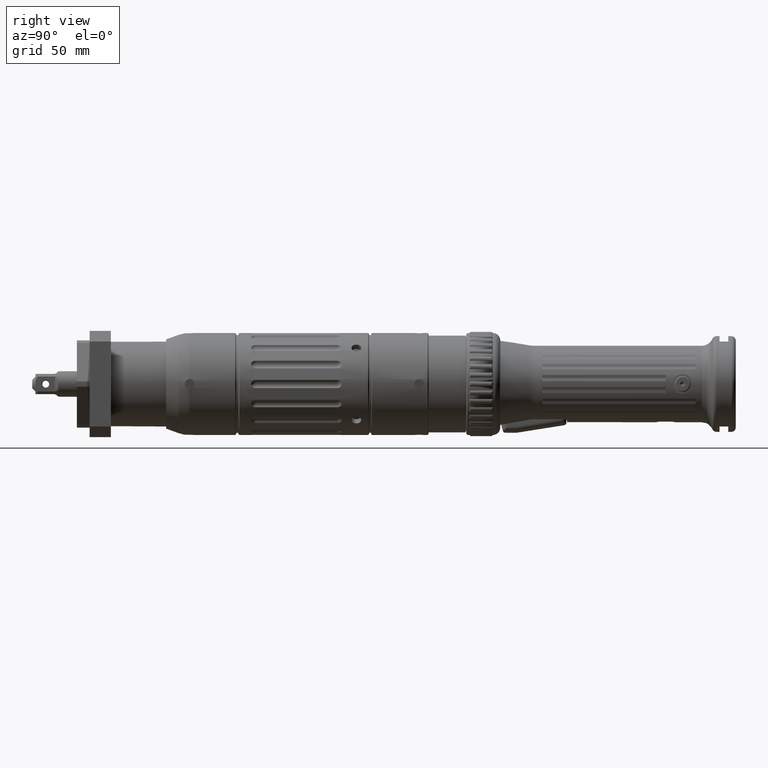
[diagram: clean part render]
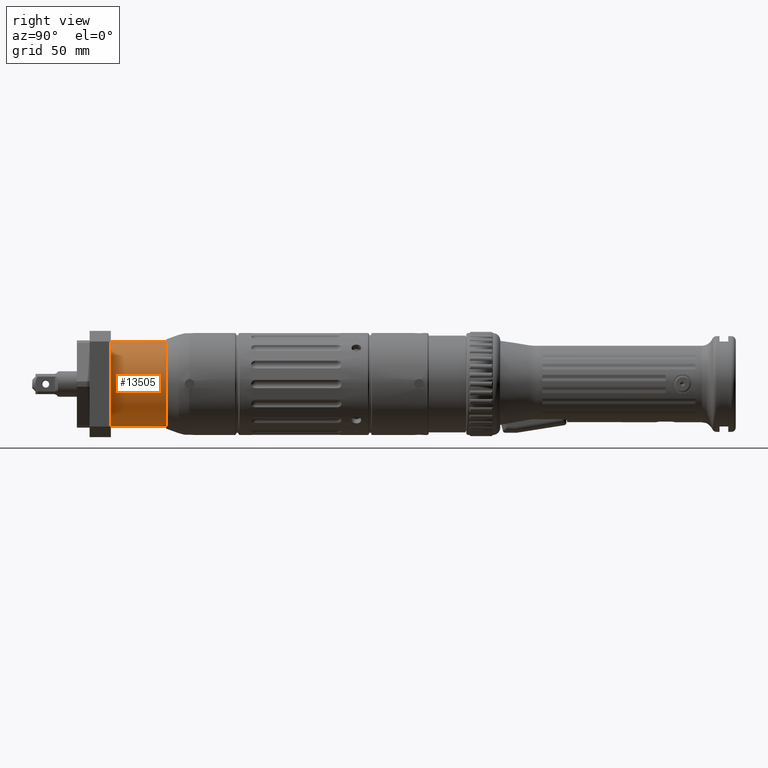
[diagram: same view with one face highlighted and labeled with its STEP entity id]
A machine part, right view. The second image highlights one B-rep face of the part: STEP entity #13505.
In plain terms, the highlighted cylindrical surface (bore or boss wall) has radius 20 mm, axis along (0, 1, -0).
Its self-contained STEP definition (entity closure, byte-faithful):
#224=FACE_BOUND('',#1887,.T.);
#1025=FACE_OUTER_BOUND('',#1886,.T.);
#1886=EDGE_LOOP('',(#8890));
#1887=EDGE_LOOP('',(#8891));
#2991=CIRCLE('',#14423,20.);
#2995=CIRCLE('',#14432,20.);
#5620=VERTEX_POINT('',#21199);
#5624=VERTEX_POINT('',#21212);
#6922=EDGE_CURVE('',#5620,#5620,#2991,.T.);
#6926=EDGE_CURVE('',#5624,#5624,#2995,.T.);
#8890=ORIENTED_EDGE('',*,*,#6926,.F.);
#8891=ORIENTED_EDGE('',*,*,#6922,.T.);
#12361=CYLINDRICAL_SURFACE('',#14431,20.);
#13505=ADVANCED_FACE('',(#1025,#224),#12361,.T.);
#14423=AXIS2_PLACEMENT_3D('',#21200,#16433,#16434);
#14431=AXIS2_PLACEMENT_3D('',#21211,#16449,#16450);
#14432=AXIS2_PLACEMENT_3D('',#21213,#16451,#16452);
#16433=DIRECTION('center_axis',(-1.24696449030073E-15,-1.,6.7053176943786E-30));
#16434=DIRECTION('ref_axis',(-1.,1.24696449030073E-15,4.13558076672873E-15));
#16449=DIRECTION('center_axis',(1.24696449030073E-15,1.,-6.7053176943786E-30));
#16450=DIRECTION('ref_axis',(-1.,1.24696449030073E-15,4.13558076672873E-15));
#16451=DIRECTION('center_axis',(1.61738765212037E-16,-1.,-4.93038065763132E-32));
#16452=DIRECTION('ref_axis',(-1.,1.24696449030073E-15,4.13558076672873E-15));
#21199=CARTESIAN_POINT('',(2.10343108503955E-13,36.3000000000001,-20.0000000000001));
#21200=CARTESIAN_POINT('Origin',(1.42796875674376E-13,36.3000000000001,
-1.56908205463691E-13));
#21211=CARTESIAN_POINT('Origin',(1.34940999385481E-13,30.,-1.56908205463691E-13));
#21212=CARTESIAN_POINT('',(-19.9999999999999,10.,-7.41965901291159E-14));
#21213=CARTESIAN_POINT('Origin',(1.10001709579467E-13,10.,-1.5690820546369E-13));